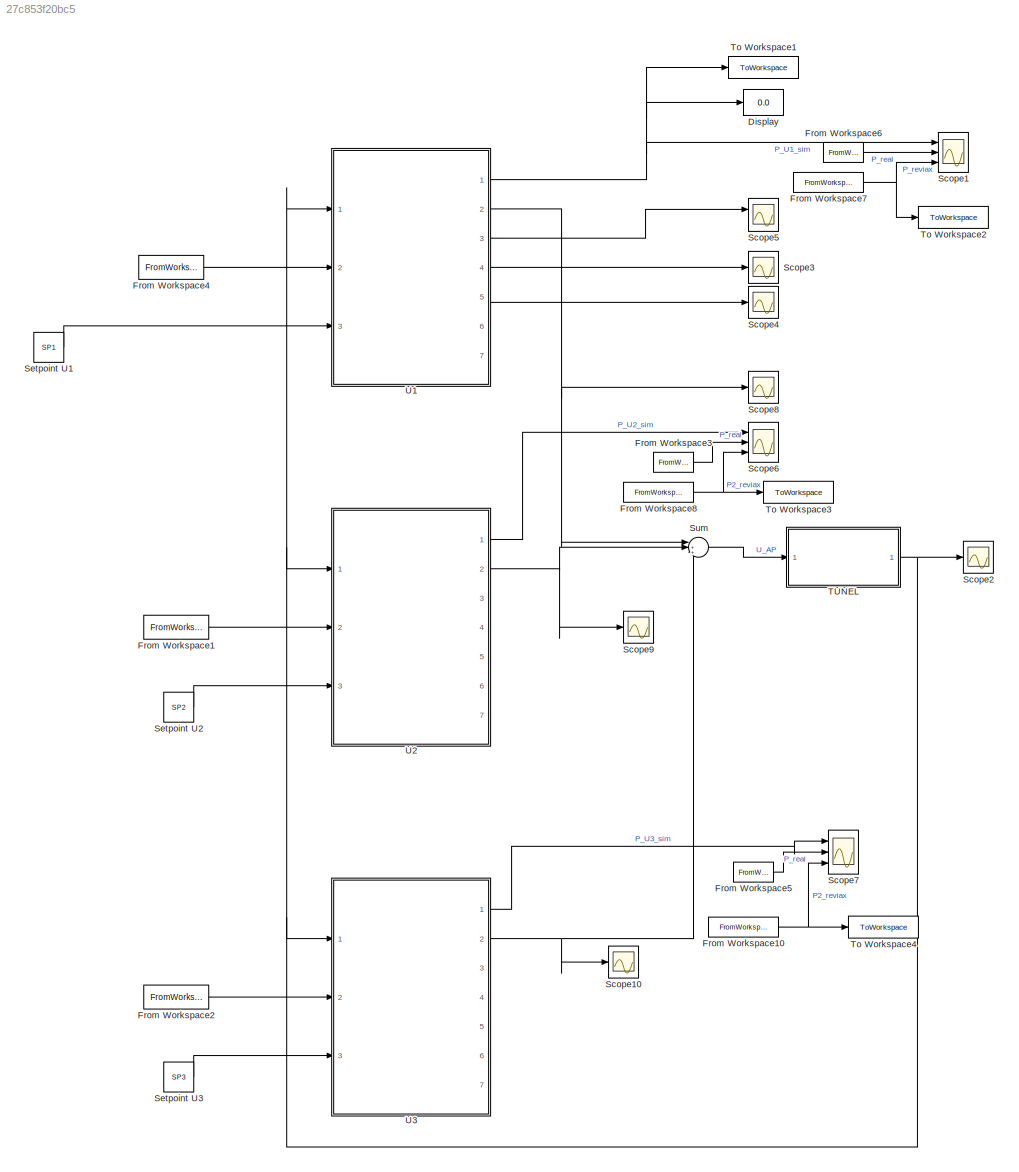
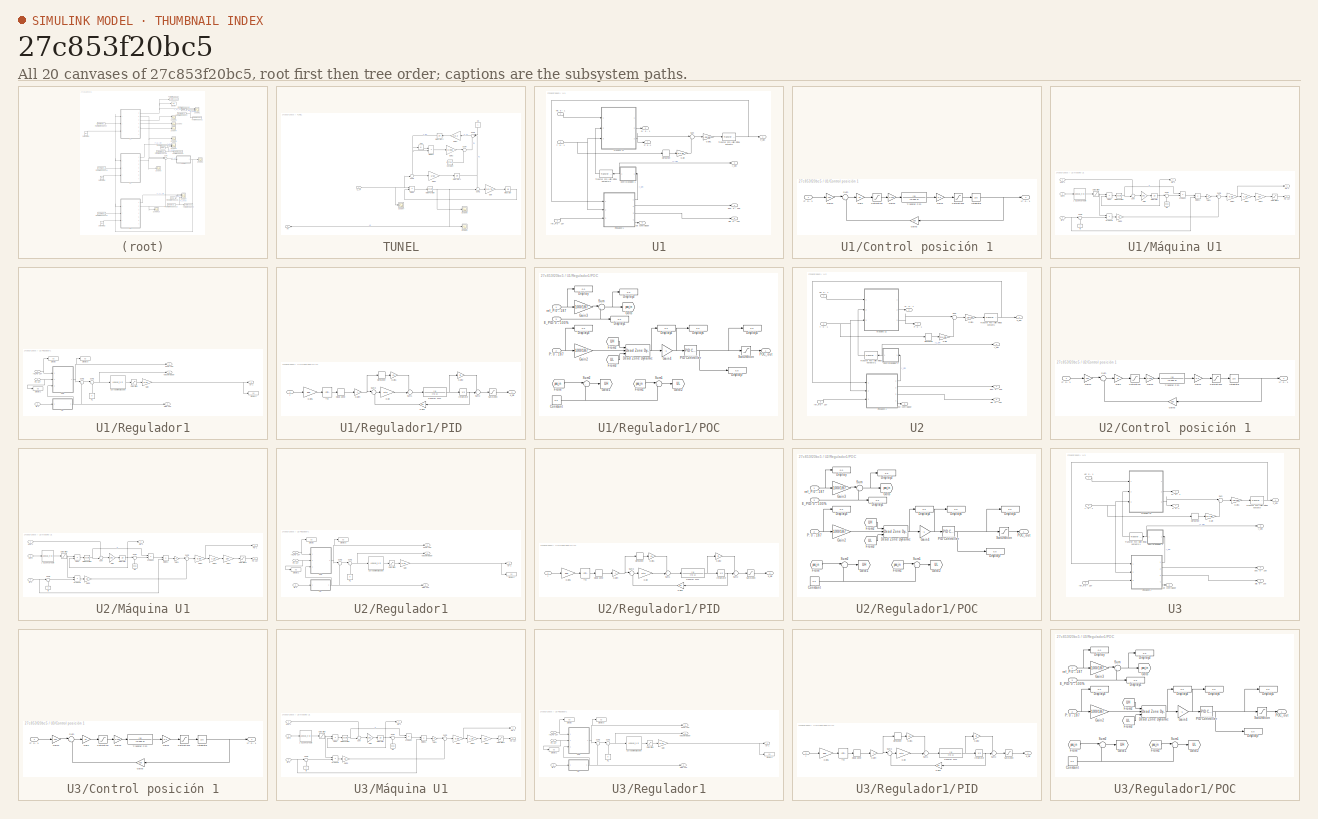
[diagram: thumbnail index - all 20 canvases of the model, root first then tree order]
MODEL slx_27c853f20bc5
KIND model
CONFIG AbsTol = auto
CONFIG EnableMultiTasking = off
CONFIG FixedStep = auto
CONFIG MaxStep = auto
CONFIG MinStep = auto
CONFIG RelTol = 1e-9
CONFIG SampleTimeConstraint = Unconstrained
CONFIG Solver = VariableStepAuto
CONFIG SolverName = VariableStepAuto
CONFIG StartTime = 0.0
CONFIG StopTime = 300
BLOCK [Display] Display
  Decimation = 1
  Ports = [1]
BLOCK [FromWorkspace] From Workspace1
  VariableName = [t f2]
BLOCK [FromWorkspace] From Workspace10
  VariableName = [DS_t, DS_P3]
BLOCK [FromWorkspace] From Workspace2
  VariableName = [t f3]
BLOCK [FromWorkspace] From Workspace3
  VariableName = [t P2]
BLOCK [FromWorkspace] From Workspace4
  VariableName = [t f1]
BLOCK [FromWorkspace] From Workspace5
  VariableName = [t P3]
BLOCK [FromWorkspace] From Workspace6
  VariableName = [t P1]
BLOCK [FromWorkspace] From Workspace7
  VariableName = [DS_t, DS_P1]
BLOCK [FromWorkspace] From Workspace8
  VariableName = [DS_t, DS_P2]
BLOCK [Scope] Scope1
  Floating = off
  NumInputPorts = 3
  Ports = [3]
  ScopeSpecificationString = Simulink.scopes.TimeScopeBlockCfg('CurrentConfiguration', extmgr.ConfigurationSet(extmgr.Configuration('Core','General UI',true,'FigureColor',[1 1 1]),extmgr.Configuration('Core','Source UI',true),extmgr.Configuration('Sources','WiredSimulink',true,'DataLoggingVariableName','ScopeData1'),extmgr.Configuration('Visuals','Time Domain',true,'SerializedDisplays',{struct('MinYLimReal','177.17887','MaxYL...<+1877ch>
BLOCK [Scope] Scope10
  Floating = off
  NumInputPorts = 1
  Ports = [1]
  ScopeSpecificationString = Simulink.scopes.TimeScopeBlockCfg('CurrentConfiguration', extmgr.ConfigurationSet(extmgr.Configuration('Core','General UI',true),extmgr.Configuration('Core','Source UI',true),extmgr.Configuration('Sources','WiredSimulink',true,'DataLoggingVariableName','ScopeData9'),extmgr.Configuration('Visuals','Time Domain',true,'SerializedDisplays',{struct('MinYLimReal','0.37497','MaxYLimReal','1.05072','YLabe...<+1459ch>
BLOCK [Scope] Scope2
  Floating = off
  NumInputPorts = 1
  Ports = [1]
  ScopeSpecificationString = Simulink.scopes.TimeScopeBlockCfg('CurrentConfiguration', extmgr.ConfigurationSet(extmgr.Configuration('Core','General UI',true),extmgr.Configuration('Core','Source UI',true),extmgr.Configuration('Sources','WiredSimulink',true,'DataLoggingVariableName','ScopeData1'),extmgr.Configuration('Visuals','Time Domain',true,'SerializedDisplays',{struct('MinYLimReal','0.99395','MaxYLimReal','1.00375','YLabe...<+1460ch>
BLOCK [Scope] Scope3
  Floating = off
  NumInputPorts = 1
  Ports = [1]
  ScopeSpecificationString = Simulink.scopes.TimeScopeBlockCfg('CurrentConfiguration', extmgr.ConfigurationSet(extmgr.Configuration('Core','General UI',true),extmgr.Configuration('Core','Source UI',true),extmgr.Configuration('Sources','WiredSimulink',true,'DataLoggingVariableName','ScopeData2'),extmgr.Configuration('Visuals','Time Domain',true,'SerializedDisplays',{struct('MinYLimReal','94.09796','MaxYLimReal','94.84471','YLa...<+1467ch>
BLOCK [Scope] Scope4
  Floating = off
  NumInputPorts = 1
  Ports = [1]
  ScopeSpecificationString = Simulink.scopes.TimeScopeBlockCfg('CurrentConfiguration', extmgr.ConfigurationSet(extmgr.Configuration('Core','General UI',true),extmgr.Configuration('Core','Source UI',true),extmgr.Configuration('Sources','WiredSimulink',true,'DataLoggingVariableName','ScopeData3'),extmgr.Configuration('Visuals','Time Domain',true,'SerializedDisplays',{struct('MinYLimReal','-1.10088','MaxYLimReal','1.43637','YLab...<+1434ch>
BLOCK [Scope] Scope5
  Floating = off
  NumInputPorts = 2
  Ports = [2]
  ScopeSpecificationString = Simulink.scopes.TimeScopeBlockCfg('CurrentConfiguration', extmgr.ConfigurationSet(extmgr.Configuration('Core','General UI',true),extmgr.Configuration('Core','Source UI',true),extmgr.Configuration('Sources','WiredSimulink',true,'DataLoggingVariableName','ScopeData4'),extmgr.Configuration('Visuals','Time Domain',true,'SerializedDisplays',{struct('MinYLimReal','0.81725','MaxYLimReal','0.85475','YLabe...<+1449ch>
BLOCK [Scope] Scope6
  Floating = off
  NumInputPorts = 3
  Ports = [3]
  ScopeSpecificationString = Simulink.scopes.TimeScopeBlockCfg('CurrentConfiguration', extmgr.ConfigurationSet(extmgr.Configuration('Core','General UI',true,'FigureColor',[1 1 1]),extmgr.Configuration('Core','Source UI',true),extmgr.Configuration('Sources','WiredSimulink',true,'DataLoggingVariableName','ScopeData1'),extmgr.Configuration('Visuals','Time Domain',true,'SerializedDisplays',{struct('MinYLimReal','176.87368','MaxYL...<+1749ch>
BLOCK [Scope] Scope7
  Floating = off
  NumInputPorts = 3
  Ports = [3]
  ScopeSpecificationString = Simulink.scopes.TimeScopeBlockCfg('CurrentConfiguration', extmgr.ConfigurationSet(extmgr.Configuration('Core','General UI',true,'FigureColor',[1 1 1]),extmgr.Configuration('Core','Source UI',true),extmgr.Configuration('Sources','WiredSimulink',true,'DataLoggingVariableName','ScopeData2'),extmgr.Configuration('Visuals','Time Domain',true,'SerializedDisplays',{struct('MinYLimReal','176.1626','MaxYLi...<+1745ch>
BLOCK [Scope] Scope8
  Floating = off
  NumInputPorts = 1
  Ports = [1]
  ScopeSpecificationString = Simulink.scopes.TimeScopeBlockCfg('CurrentConfiguration', extmgr.ConfigurationSet(extmgr.Configuration('Core','General UI',true),extmgr.Configuration('Core','Source UI',true),extmgr.Configuration('Sources','WiredSimulink',true,'DataLoggingVariableName','ScopeData7'),extmgr.Configuration('Visuals','Time Domain',true,'SerializedDisplays',{struct('MinYLimReal','0.09964','MaxYLimReal','1.07688','YLabe...<+1459ch>
BLOCK [Scope] Scope9
  Floating = off
  NumInputPorts = 1
  Ports = [1]
  ScopeSpecificationString = Simulink.scopes.TimeScopeBlockCfg('CurrentConfiguration', extmgr.ConfigurationSet(extmgr.Configuration('Core','General UI',true),extmgr.Configuration('Core','Source UI',true),extmgr.Configuration('Sources','WiredSimulink',true,'DataLoggingVariableName','ScopeData8'),extmgr.Configuration('Visuals','Time Domain',true,'SerializedDisplays',{struct('MinYLimReal','0.09964','MaxYLimReal','1.07688','YLabe...<+1459ch>
BLOCK [Constant] Setpoint U1
  Value = SP1
BLOCK [Constant] Setpoint U2
  Value = SP2
BLOCK [Constant] Setpoint U3
  Value = SP3
BLOCK [Sum] Sum
  Inputs = |+++
  Ports = [3, 1]
BLOCK [SubSystem] TUNEL
  Ports = [1, 1]
  RequestExecContextInheritance = off
BLOCK [Abs] TUNEL/Abs
  SaturateOnIntegerOverflow = off
BLOCK [Constant] TUNEL/Constant
  Value = (qt_i)^2*0.008
BLOCK [Product] TUNEL/Divide
  Inputs = /*
  Ports = [2, 1]
BLOCK [Product] TUNEL/Divide1
  Inputs = **
  Ports = [2, 1]
BLOCK [Gain] TUNEL/Gain
  Gain = 1/0.70
BLOCK [Gain] TUNEL/Gain1
  Gain = 1/50
BLOCK [Gain] TUNEL/Gain2
  Gain = 0.008
BLOCK [Gain] TUNEL/Gain3
  Gain = 1/0.2
  NameLocation = top
BLOCK [Outport] TUNEL/Hn
BLOCK [Constant] TUNEL/Ho
  NameLocation = left
BLOCK [Integrator] TUNEL/Integrator
  InitialCondition = qt_i
  Ports = [1, 1]
BLOCK [Integrator] TUNEL/Integrator1
  InitialCondition = 1
  Ports = [1, 1]
BLOCK [Integrator] TUNEL/Integrator2
  InitialCondition = qt_i
  NameLocation = top
  Ports = [1, 1]
BLOCK [Math] TUNEL/Math Function
  Operator = square
  Ports = [1, 1]
BLOCK [Scope] TUNEL/Scope2
  Floating = off
  NumInputPorts = 1
  Ports = [1]
  ScopeSpecificationString = Simulink.scopes.TimeScopeBlockCfg('CurrentConfiguration', extmgr.ConfigurationSet(extmgr.Configuration('Core','General UI',true),extmgr.Configuration('Core','Source UI',true),extmgr.Configuration('Sources','WiredSimulink',true),extmgr.Configuration('Visuals','Time Domain',true,'SerializedDisplays',{struct('MinYLimReal','-415265002001530061720023369296904192.00000','MaxYLimReal','461876022467198030...<+1698ch>
BLOCK [Scope] TUNEL/Scope6
  Floating = off
  NumInputPorts = 1
  Ports = [1]
  ScopeSpecificationString = Simulink.scopes.TimeScopeBlockCfg('CurrentConfiguration', extmgr.ConfigurationSet(extmgr.Configuration('Core','General UI',true),extmgr.Configuration('Core','Source UI',true),extmgr.Configuration('Sources','WiredSimulink',true,'DataLoggingVariableName','ScopeData5'),extmgr.Configuration('Visuals','Time Domain',true,'SerializedDisplays',{struct('MinYLimReal','0.96718','MaxYLimReal','1.15467','YLabe...<+1457ch>
BLOCK [Scope] TUNEL/Scope7
  Floating = off
  NumInputPorts = 1
  Ports = [1]
  ScopeSpecificationString = Simulink.scopes.TimeScopeBlockCfg('CurrentConfiguration', extmgr.ConfigurationSet(extmgr.Configuration('Core','General UI',true),extmgr.Configuration('Core','Source UI',true),extmgr.Configuration('Sources','WiredSimulink',true,'DataLoggingVariableName','ScopeData6'),extmgr.Configuration('Visuals','Time Domain',true,'SerializedDisplays',{struct('MinYLimReal','2.71955','MaxYLimReal','3.08526','YLabe...<+1459ch>
BLOCK [Sum] TUNEL/Sum1
  Inputs = +-|
  Ports = [2, 1]
BLOCK [Sum] TUNEL/Sum2
  Inputs = +-|
  Ports = [2, 1]
BLOCK [Sum] TUNEL/Sum3
  Inputs = |+--
  NameLocation = top
  Ports = [3, 1]
BLOCK [Sum] TUNEL/Sum4
  Inputs = |+-
  Ports = [2, 1]
BLOCK [Inport] TUNEL/U_AP
BLOCK [ToWorkspace] To Workspace1
  FixptAsFi = on
  MaxDataPoints = inf
  Ports = [1]
  SampleTime = 1
  SaveFormat = Timeseries
  VariableName = P1_sim
BLOCK [ToWorkspace] To Workspace2
  FixptAsFi = on
  MaxDataPoints = inf
  Ports = [1]
  SampleTime = 1
  SaveFormat = Timeseries
  VariableName = P1_reivax
BLOCK [ToWorkspace] To Workspace3
  FixptAsFi = on
  MaxDataPoints = inf
  Ports = [1]
  SampleTime = 1
  SaveFormat = Timeseries
  VariableName = P2_reivax
BLOCK [ToWorkspace] To Workspace4
  FixptAsFi = on
  MaxDataPoints = inf
  Ports = [1]
  SampleTime = 1
  SaveFormat = Timeseries
  VariableName = P3_reivax
BLOCK [SubSystem] U1
  Ports = [3, 7]
  RequestExecContextInheritance = off
BLOCK [SubSystem] U1/Control posición 1
  NameLocation = top
  Ports = [1, 1]
  RequestExecContextInheritance = off
BLOCK [Gain] U1/Control posición 1/Gain
  Gain = 15
BLOCK [Gain] U1/Control posición 1/Gain1
  Gain = 0.3
BLOCK [Gain] U1/Control posición 1/Gain2
  Gain = 1/100
BLOCK [Gain] U1/Control posición 1/Gain3
  Gain = 100
  NameLocation = top
BLOCK [Gain] U1/Control posición 1/Gain4
  Gain = 100
BLOCK [Integrator] U1/Control posición 1/Integrator
  InitialCondition = y_i_u1
  LimitOutput = on
  LowerSaturationLimit = -1
  Ports = [1, 1]
  UpperSaturationLimit = 1
BLOCK [Saturate] U1/Control posición 1/Saturation
  LowerLimit = -100
  UpperLimit = 100
BLOCK [Saturate] U1/Control posición 1/Saturation1
  LowerLimit = -0.1
  UpperLimit = 0.1
BLOCK [Sum] U1/Control posición 1/Sum
  Inputs = |+-
  Ports = [2, 1]
BLOCK [TransferFcn] U1/Control posición 1/Transfer Fcn
  Denominator = [0.020 1]
BLOCK [Inport] U1/Control posición 1/yf: 0 - 1
BLOCK [Outport] U1/Control posición 1/yr: 0 - 1
BLOCK [Derivative] U1/Derivative
BLOCK [Gain] U1/Gain
  Gain = 2*4.35
BLOCK [Gain] U1/Gain1
  Gain = 1.26*187
BLOCK [Inport] U1/Hn: 0 - 1
BLOCK [SubSystem] U1/Máquina U1
  Ports = [3, 3]
  RequestExecContextInheritance = off
BLOCK [Lookup_n-D] U1/Máquina U1/1-D Lookup Table
  BreakpointsForDimension1 = [0,0.072,0.336,0.35,0.4,0.45,0.5,0.55,0.6,0.65,0.7,0.75,0.8,0.85,0.9,0.95,1]
  InternalRulePriority = Speed
  NumberOfTableDimensions = 1
  Ports = [1, 1]
  RndMeth = Simplest
  Table = [0,0.086,0.387,0.4035,0.4592,0.5194,0.5826,0.6475,0.7127,0.777,0.8389,0.8971,0.9502,0.9969,1.0358,1.0656,1.0849]
BLOCK [Product] U1/Máquina U1/Divide
  Inputs = /*
  Ports = [2, 1]
BLOCK [Product] U1/Máquina U1/Divide1
  Inputs = */
  Ports = [2, 1]
BLOCK [Gain] U1/Máquina U1/Gain
  Gain = 1/0.3
BLOCK [Gain] U1/Máquina U1/Gain1
BLOCK [Gain] U1/Máquina U1/Gain2
  Gain = 1.26
BLOCK [Gain] U1/Máquina U1/Gain3
  Gain = 0.85
BLOCK [Gain] U1/Máquina U1/Gain4
  Gain = 187
BLOCK [Gain] U1/Máquina U1/Gain5
  Gain = 0.2
BLOCK [Inport] U1/Máquina U1/Hn: 0 - 1
BLOCK [Integrator] U1/Máquina U1/Integrator
  InitialCondition = q_i_u1
  Ports = [1, 1]
BLOCK [Math] U1/Máquina U1/Math Function
  Operator = square
  Ports = [1, 1]
BLOCK [Outport] U1/Máquina U1/P: 0 - 1
  Port = 3
BLOCK [Outport] U1/Máquina U1/P: 0 - 187
BLOCK [Product] U1/Máquina U1/Product
  Ports = [2, 1]
BLOCK [Product] U1/Máquina U1/Product1
  Ports = [2, 1]
BLOCK [Outport] U1/Máquina U1/Q: 0 - 1
  Port = 2
BLOCK [Constant] U1/Máquina U1/Qo
  Value = 0.086
BLOCK [Saturate] U1/Máquina U1/Saturation
  LowerLimit = 0.0001
  UpperLimit = 1.1
BLOCK [Saturate] U1/Máquina U1/Saturation1
  LowerLimit = 0
  UpperLimit = 200
BLOCK [Sum] U1/Máquina U1/Sum
  Inputs = +-|
  Ports = [2, 1]
BLOCK [Sum] U1/Máquina U1/Sum1
  Inputs = |+-
  Ports = [2, 1]
BLOCK [Sum] U1/Máquina U1/Sum2
  Inputs = |+-
  Ports = [2, 1]
BLOCK [Sum] U1/Máquina U1/Sum3
  Inputs = |+-
  Ports = [2, 1]
BLOCK [Inport] U1/Máquina U1/f: 0 -1
  Port = 3
BLOCK [Constant] U1/Máquina U1/fo
BLOCK [Inport] U1/Máquina U1/y: 0 - 1
  Port = 2
BLOCK [Outport] U1/P: 0 -1
  Port = 7
BLOCK [Outport] U1/P_sim
BLOCK [Outport] U1/Q: 0 - 1
  Port = 2
BLOCK [SubSystem] U1/Regulador1
  Ports = [3, 4]
  RequestExecContextInheritance = off
BLOCK [Lookup_n-D] U1/Regulador1/Curva de linealización
  BreakpointsForDimension1 = [-1,0,8,8.001,18,38,48,58,68,78,88,98,107,151]
  InternalRulePriority = Speed
  NumberOfTableDimensions = 1
  Ports = [1, 1]
  RndMeth = Simplest
  Table = [-1,0,8,8.001,17.4,33.1,40,46.3,51.8,59.0,67,78,89,115]
BLOCK [Display] U1/Regulador1/Display
  Decimation = 1
  Ports = [1]
BLOCK [Display] U1/Regulador1/Display1
  Decimation = 1
  Ports = [1]
BLOCK [Display] U1/Regulador1/Display2
  Decimation = 1
  Ports = [1]
BLOCK [Display] U1/Regulador1/Display3
  Decimation = 1
  Ports = [1]
BLOCK [Gain] U1/Regulador1/Gain
  Gain = 0.01
BLOCK [Constant] U1/Regulador1/NL
  NameLocation = right
  Value = 8
BLOCK [Inport] U1/Regulador1/P: 0 - 187
BLOCK [SubSystem] U1/Regulador1/PID
  Ports = [1, 1]
  RequestExecContextInheritance = off
BLOCK [DeadZone] U1/Regulador1/PID/Dead Zone
  LowerValue = 100-0.01
  UpperValue = 100+0.01
BLOCK [Derivative] U1/Regulador1/PID/Derivative
BLOCK [Gain] U1/Regulador1/PID/Gain
  Gain = 1/tx
BLOCK [Gain] U1/Regulador1/PID/Gain1
  Gain = kp
BLOCK [Gain] U1/Regulador1/PID/Gain2
  Gain = td
BLOCK [Gain] U1/Regulador1/PID/Gain3
  Gain = bp
  NameLocation = top
BLOCK [Gain] U1/Regulador1/PID/Gain4
  Gain = -1
BLOCK [Gain] U1/Regulador1/PID/Gain5
  Gain = 100
BLOCK [InitialCondition] U1/Regulador1/PID/IC1
  Value = 100
BLOCK [Integrator] U1/Regulador1/PID/Integrator
  Ports = [1, 1]
BLOCK [Saturate] U1/Regulador1/PID/Saturation
  LowerLimit = -2.5
  UpperLimit = 2.5
BLOCK [Sum] U1/Regulador1/PID/Sum1
  Inputs = ++|
  Ports = [2, 1]
BLOCK [Sum] U1/Regulador1/PID/Sum2
  Inputs = ++|
  Ports = [2, 1]
BLOCK [Sum] U1/Regulador1/PID/Sum3
  Inputs = |+-
  Ports = [2, 1]
BLOCK [TransferFcn] U1/Regulador1/PID/Transfer Fcn1
  Denominator = [t3 1]
BLOCK [Outport] U1/Regulador1/PID/e_pid
BLOCK [Inport] U1/Regulador1/PID/f
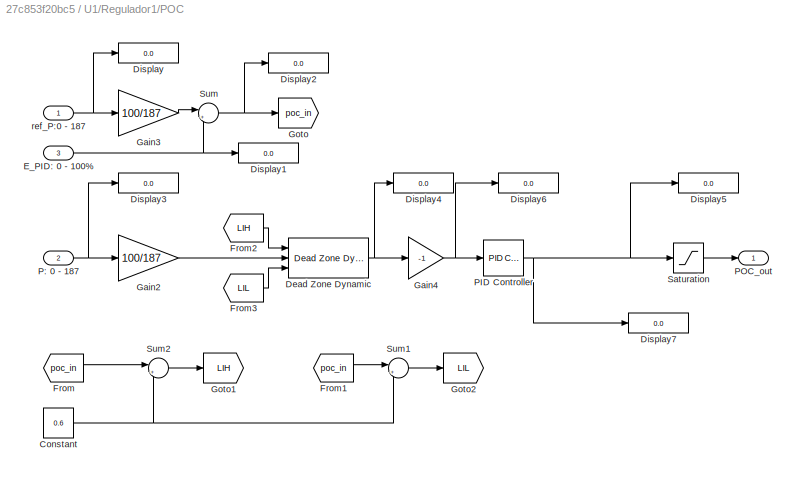
BLOCK [SubSystem] U1/Regulador1/POC
  Ports = [3, 1]
  RequestExecContextInheritance = off
BLOCK [Constant] U1/Regulador1/POC/Constant
  Value = 0.6
BLOCK [Reference] U1/Regulador1/POC/Dead Zone Dynamic  REF=simulink/Discontinuities/Dead Zone
Dynamic
  Ports = [3, 1]
  SourceBlock = simulink/Discontinuities/Dead Zone\nDynamic
  SourceProductBaseCode = SL
  SourceType = Dead Zone Dynamic
BLOCK [Display] U1/Regulador1/POC/Display
  Decimation = 1
  Ports = [1]
BLOCK [Display] U1/Regulador1/POC/Display1
  Decimation = 1
  Ports = [1]
BLOCK [Display] U1/Regulador1/POC/Display2
  Decimation = 1
  Ports = [1]
BLOCK [Display] U1/Regulador1/POC/Display3
  Decimation = 1
  Ports = [1]
BLOCK [Display] U1/Regulador1/POC/Display4
  Decimation = 1
  Ports = [1]
BLOCK [Display] U1/Regulador1/POC/Display5
  Decimation = 1
  Ports = [1]
BLOCK [Display] U1/Regulador1/POC/Display6
  Decimation = 1
  Ports = [1]
BLOCK [Display] U1/Regulador1/POC/Display7
  Decimation = 1
  Ports = [1]
BLOCK [Inport] U1/Regulador1/POC/E_PID: 0 - 100%
  Port = 3
BLOCK [From] U1/Regulador1/POC/From
  GotoTag = poc_in
BLOCK [From] U1/Regulador1/POC/From1
  GotoTag = poc_in
BLOCK [From] U1/Regulador1/POC/From2
  GotoTag = LIH
BLOCK [From] U1/Regulador1/POC/From3
  GotoTag = LIL
BLOCK [Gain] U1/Regulador1/POC/Gain2
  Gain = 100/187
BLOCK [Gain] U1/Regulador1/POC/Gain3
  Gain = 100/187
BLOCK [Gain] U1/Regulador1/POC/Gain4
  Gain = -1
BLOCK [Goto] U1/Regulador1/POC/Goto
  GotoTag = poc_in
BLOCK [Goto] U1/Regulador1/POC/Goto1
  GotoTag = LIH
BLOCK [Goto] U1/Regulador1/POC/Goto2
  GotoTag = LIL
BLOCK [Inport] U1/Regulador1/POC/P: 0 - 187
  Port = 2
BLOCK [Reference] U1/Regulador1/POC/PID Controller  REF=simulink/Continuous/PID Controller
  Ports = [1, 1]
  SourceBlock = simulink/Continuous/PID Controller
  SourceProductBaseCode = SL
  SourceType = PID 1dof
BLOCK [Outport] U1/Regulador1/POC/POC_out
BLOCK [Saturate] U1/Regulador1/POC/Saturation
  LowerLimit = -120
  UpperLimit = 120
  ZeroCross = off
BLOCK [Sum] U1/Regulador1/POC/Sum
  Inputs = |++
  Ports = [2, 1]
BLOCK [Sum] U1/Regulador1/POC/Sum1
  Inputs = |+-
  Ports = [2, 1]
BLOCK [Sum] U1/Regulador1/POC/Sum2
  Inputs = |++
  Ports = [2, 1]
BLOCK [Inport] U1/Regulador1/POC/ref_P:0 - 187
BLOCK [Saturate] U1/Regulador1/Saturation
  LowerLimit = 7.9
  UpperLimit = 115
  ZeroCross = off
BLOCK [Sum] U1/Regulador1/Sum1
  Inputs = |++
  Ports = [2, 1]
BLOCK [Sum] U1/Regulador1/Sum2
  Inputs = |++
  Ports = [2, 1]
BLOCK [Inport] U1/Regulador1/f: 0 - 1
  Port = 2
BLOCK [Outport] U1/Regulador1/out controlador
  Port = 4
BLOCK [Outport] U1/Regulador1/pid: 0 - 100
  Port = 3
BLOCK [Outport] U1/Regulador1/poc: 0 - 100
  Port = 2
BLOCK [Inport] U1/Regulador1/ref_P:0 - 187
  Port = 3
BLOCK [Outport] U1/Regulador1/y: 0 - 1
BLOCK [Sum] U1/Sum
  Inputs = |+-
  Ports = [2, 1]
BLOCK [Reference] U1/Transfer Fcn (with initial outputs)  REF=simulink_extras/Additional
Linear/Transfer Fcn
(with initial outputs)
  Ports = [1, 1]
  SourceBlock = simulink_extras/Additional\nLinear/Transfer Fcn\n(with initial outputs)
  SourceProductBaseCode = SL
  SourceType = Transfer Function with Initial Outputs
BLOCK [Reference] U1/Transfer Fcn (with initial outputs)1  REF=simulink_extras/Additional
Linear/Transfer Fcn
(with initial outputs)
  NameLocation = top
  Ports = [1, 1]
  SourceBlock = simulink_extras/Additional\nLinear/Transfer Fcn\n(with initial outputs)
  SourceProductBaseCode = SL
  SourceType = Transfer Function with Initial Outputs
BLOCK [Inport] U1/f: 0 - 1
  Port = 2
BLOCK [Outport] U1/out controlador
  Port = 6
BLOCK [Outport] U1/pid: 0 - 100
  Port = 5
BLOCK [Outport] U1/poc: 0 - 100
  Port = 4
BLOCK [Inport] U1/ref_P:0 - 187
  Port = 3
BLOCK [Outport] U1/y_sim
  Port = 3
BLOCK [SubSystem] U2
  Ports = [3, 7]
  RequestExecContextInheritance = off
BLOCK [SubSystem] U2/Control posición 1
  NameLocation = top
  Ports = [1, 1]
  RequestExecContextInheritance = off
BLOCK [Gain] U2/Control posición 1/Gain
  Gain = 15
BLOCK [Gain] U2/Control posición 1/Gain1
  Gain = 0.3
BLOCK [Gain] U2/Control posición 1/Gain2
  Gain = 1/100
BLOCK [Gain] U2/Control posición 1/Gain3
  Gain = 100
  NameLocation = top
BLOCK [Gain] U2/Control posición 1/Gain4
  Gain = 100
BLOCK [Integrator] U2/Control posición 1/Integrator
  InitialCondition = y_i_u2
  LimitOutput = on
  LowerSaturationLimit = -1
  Ports = [1, 1]
  UpperSaturationLimit = 1
BLOCK [Saturate] U2/Control posición 1/Saturation
  LowerLimit = -100
  UpperLimit = 100
BLOCK [Saturate] U2/Control posición 1/Saturation1
  LowerLimit = -0.1
  UpperLimit = 0.1
BLOCK [Sum] U2/Control posición 1/Sum
  Inputs = |+-
  Ports = [2, 1]
BLOCK [TransferFcn] U2/Control posición 1/Transfer Fcn
  Denominator = [0.020 1]
BLOCK [Inport] U2/Control posición 1/yf: 0 - 1
BLOCK [Outport] U2/Control posición 1/yr: 0 - 1
BLOCK [Derivative] U2/Derivative
BLOCK [Gain] U2/Gain
  Gain = 2*4.35
BLOCK [Gain] U2/Gain1
  Gain = 1.26*187
BLOCK [Inport] U2/Hn: 0 - 1
BLOCK [SubSystem] U2/Máquina U1
  Ports = [3, 3]
  RequestExecContextInheritance = off
BLOCK [Lookup_n-D] U2/Máquina U1/1-D Lookup Table
  BreakpointsForDimension1 = [0,0.072,0.336,0.35,0.4,0.45,0.5,0.55,0.6,0.65,0.7,0.75,0.8,0.85,0.9,0.95,1]
  InternalRulePriority = Speed
  NumberOfTableDimensions = 1
  Ports = [1, 1]
  RndMeth = Simplest
  Table = [0,0.086,0.387,0.4035,0.4592,0.5194,0.5826,0.6475,0.7127,0.777,0.8389,0.8971,0.9502,0.9969,1.0358,1.0656,1.0849]
BLOCK [Product] U2/Máquina U1/Divide
  Inputs = /*
  Ports = [2, 1]
BLOCK [Product] U2/Máquina U1/Divide1
  Inputs = */
  Ports = [2, 1]
BLOCK [Gain] U2/Máquina U1/Gain
  Gain = 1/0.3
BLOCK [Gain] U2/Máquina U1/Gain1
BLOCK [Gain] U2/Máquina U1/Gain2
  Gain = 1.26
BLOCK [Gain] U2/Máquina U1/Gain3
  Gain = 0.85
BLOCK [Gain] U2/Máquina U1/Gain4
  Gain = 187
BLOCK [Gain] U2/Máquina U1/Gain5
  Gain = 0.2
BLOCK [Inport] U2/Máquina U1/Hn: 0 - 1
BLOCK [Integrator] U2/Máquina U1/Integrator
  InitialCondition = q_i_u2
  Ports = [1, 1]
BLOCK [Math] U2/Máquina U1/Math Function
  Operator = square
  Ports = [1, 1]
BLOCK [Outport] U2/Máquina U1/P: 0 - 1
  Port = 3
BLOCK [Outport] U2/Máquina U1/P: 0 - 187
BLOCK [Product] U2/Máquina U1/Product
  Ports = [2, 1]
BLOCK [Product] U2/Máquina U1/Product1
  Ports = [2, 1]
BLOCK [Outport] U2/Máquina U1/Q: 0 - 1
  Port = 2
BLOCK [Constant] U2/Máquina U1/Qo
  Value = 0.086
BLOCK [Saturate] U2/Máquina U1/Saturation
  LowerLimit = 0.0001
  UpperLimit = 1.1
BLOCK [Saturate] U2/Máquina U1/Saturation1
  LowerLimit = 0
  UpperLimit = 200
BLOCK [Sum] U2/Máquina U1/Sum
  Inputs = +-|
  Ports = [2, 1]
BLOCK [Sum] U2/Máquina U1/Sum1
  Inputs = |+-
  Ports = [2, 1]
BLOCK [Sum] U2/Máquina U1/Sum2
  Inputs = |+-
  Ports = [2, 1]
BLOCK [Sum] U2/Máquina U1/Sum3
  Inputs = |+-
  Ports = [2, 1]
BLOCK [Inport] U2/Máquina U1/f: 0 -1
  Port = 3
BLOCK [Constant] U2/Máquina U1/fo
BLOCK [Inport] U2/Máquina U1/y: 0 - 1
  Port = 2
BLOCK [Outport] U2/P: 0 - 1
  Port = 7
BLOCK [Outport] U2/P_sim
BLOCK [Outport] U2/Q: 0 - 1
  Port = 2
BLOCK [SubSystem] U2/Regulador1
  Ports = [3, 4]
  RequestExecContextInheritance = off
BLOCK [Lookup_n-D] U2/Regulador1/Curva de linealización
  BreakpointsForDimension1 = [-1,0,8,8.001,18,38,48,58,68,78,88,98,107,151]
  InternalRulePriority = Speed
  NumberOfTableDimensions = 1
  Ports = [1, 1]
  RndMeth = Simplest
  Table = [-1,0,8,8.001,17.4,33.1,40,46.3,51.8,59.0,67,78,89,115]
BLOCK [Display] U2/Regulador1/Display
  Decimation = 1
  Ports = [1]
BLOCK [Display] U2/Regulador1/Display1
  Decimation = 1
  Ports = [1]
BLOCK [Display] U2/Regulador1/Display2
  Decimation = 1
  Ports = [1]
BLOCK [Display] U2/Regulador1/Display3
  Decimation = 1
  Ports = [1]
BLOCK [Gain] U2/Regulador1/Gain
  Gain = 0.01
BLOCK [Constant] U2/Regulador1/NL
  NameLocation = right
  Value = 8
BLOCK [Inport] U2/Regulador1/P: 0 - 187
BLOCK [SubSystem] U2/Regulador1/PID
  Ports = [1, 1]
  RequestExecContextInheritance = off
BLOCK [DeadZone] U2/Regulador1/PID/Dead Zone
  LowerValue = 100-0.01
  UpperValue = 100+0.01
BLOCK [Derivative] U2/Regulador1/PID/Derivative
BLOCK [Gain] U2/Regulador1/PID/Gain
  Gain = 1/tx
BLOCK [Gain] U2/Regulador1/PID/Gain1
  Gain = kp
BLOCK [Gain] U2/Regulador1/PID/Gain2
  Gain = td
BLOCK [Gain] U2/Regulador1/PID/Gain3
  Gain = bp
  NameLocation = top
BLOCK [Gain] U2/Regulador1/PID/Gain4
  Gain = -1
BLOCK [Gain] U2/Regulador1/PID/Gain5
  Gain = 100
BLOCK [InitialCondition] U2/Regulador1/PID/IC1
  Value = 100
BLOCK [Integrator] U2/Regulador1/PID/Integrator
  Ports = [1, 1]
BLOCK [Saturate] U2/Regulador1/PID/Saturation
  LowerLimit = -2.5
  UpperLimit = 2.5
BLOCK [Sum] U2/Regulador1/PID/Sum1
  Inputs = ++|
  Ports = [2, 1]
BLOCK [Sum] U2/Regulador1/PID/Sum2
  Inputs = ++|
  Ports = [2, 1]
BLOCK [Sum] U2/Regulador1/PID/Sum3
  Inputs = |+-
  Ports = [2, 1]
BLOCK [TransferFcn] U2/Regulador1/PID/Transfer Fcn1
  Denominator = [t3 1]
BLOCK [Outport] U2/Regulador1/PID/e_pid
BLOCK [Inport] U2/Regulador1/PID/f
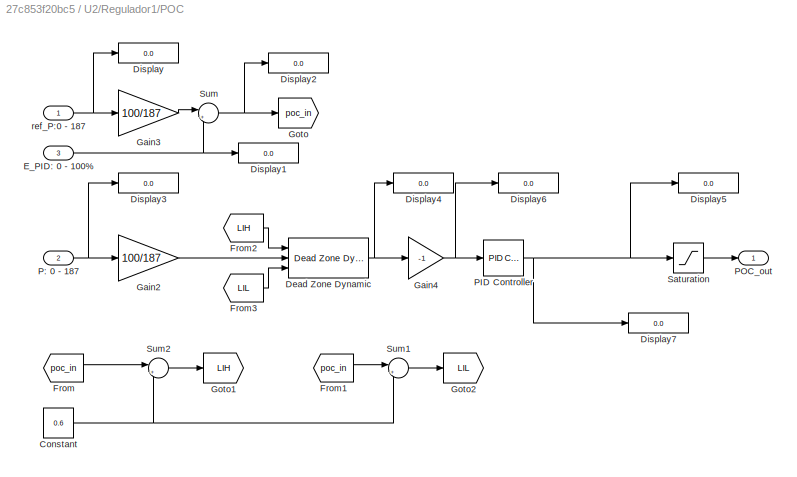
BLOCK [SubSystem] U2/Regulador1/POC
  Ports = [3, 1]
  RequestExecContextInheritance = off
BLOCK [Constant] U2/Regulador1/POC/Constant
  Value = 0.6
BLOCK [Reference] U2/Regulador1/POC/Dead Zone Dynamic  REF=simulink/Discontinuities/Dead Zone
Dynamic
  Ports = [3, 1]
  SourceBlock = simulink/Discontinuities/Dead Zone\nDynamic
  SourceProductBaseCode = SL
  SourceType = Dead Zone Dynamic
BLOCK [Display] U2/Regulador1/POC/Display
  Decimation = 1
  Ports = [1]
BLOCK [Display] U2/Regulador1/POC/Display1
  Decimation = 1
  Ports = [1]
BLOCK [Display] U2/Regulador1/POC/Display2
  Decimation = 1
  Ports = [1]
BLOCK [Display] U2/Regulador1/POC/Display3
  Decimation = 1
  Ports = [1]
BLOCK [Display] U2/Regulador1/POC/Display4
  Decimation = 1
  Ports = [1]
BLOCK [Display] U2/Regulador1/POC/Display5
  Decimation = 1
  Ports = [1]
BLOCK [Display] U2/Regulador1/POC/Display6
  Decimation = 1
  Ports = [1]
BLOCK [Display] U2/Regulador1/POC/Display7
  Decimation = 1
  Ports = [1]
BLOCK [Inport] U2/Regulador1/POC/E_PID: 0 - 100%
  Port = 3
BLOCK [From] U2/Regulador1/POC/From
  GotoTag = poc_in
BLOCK [From] U2/Regulador1/POC/From1
  GotoTag = poc_in
BLOCK [From] U2/Regulador1/POC/From2
  GotoTag = LIH
BLOCK [From] U2/Regulador1/POC/From3
  GotoTag = LIL
BLOCK [Gain] U2/Regulador1/POC/Gain2
  Gain = 100/187
BLOCK [Gain] U2/Regulador1/POC/Gain3
  Gain = 100/187
BLOCK [Gain] U2/Regulador1/POC/Gain4
  Gain = -1
BLOCK [Goto] U2/Regulador1/POC/Goto
  GotoTag = poc_in
BLOCK [Goto] U2/Regulador1/POC/Goto1
  GotoTag = LIH
BLOCK [Goto] U2/Regulador1/POC/Goto2
  GotoTag = LIL
BLOCK [Inport] U2/Regulador1/POC/P: 0 - 187
  Port = 2
BLOCK [Reference] U2/Regulador1/POC/PID Controller  REF=simulink/Continuous/PID Controller
  Ports = [1, 1]
  SourceBlock = simulink/Continuous/PID Controller
  SourceProductBaseCode = SL
  SourceType = PID 1dof
BLOCK [Outport] U2/Regulador1/POC/POC_out
BLOCK [Saturate] U2/Regulador1/POC/Saturation
  LowerLimit = -120
  UpperLimit = 120
  ZeroCross = off
BLOCK [Sum] U2/Regulador1/POC/Sum
  Inputs = |++
  Ports = [2, 1]
BLOCK [Sum] U2/Regulador1/POC/Sum1
  Inputs = |+-
  Ports = [2, 1]
BLOCK [Sum] U2/Regulador1/POC/Sum2
  Inputs = |++
  Ports = [2, 1]
BLOCK [Inport] U2/Regulador1/POC/ref_P:0 - 187
BLOCK [Saturate] U2/Regulador1/Saturation
  LowerLimit = 7.9
  UpperLimit = 115
  ZeroCross = off
BLOCK [Sum] U2/Regulador1/Sum1
  Inputs = |++
  Ports = [2, 1]
BLOCK [Sum] U2/Regulador1/Sum2
  Inputs = |++
  Ports = [2, 1]
BLOCK [Inport] U2/Regulador1/f: 0 - 1
  Port = 2
BLOCK [Outport] U2/Regulador1/out controlador
  Port = 4
BLOCK [Outport] U2/Regulador1/pid: 0 - 100
  Port = 3
BLOCK [Outport] U2/Regulador1/poc: 0 - 100
  Port = 2
BLOCK [Inport] U2/Regulador1/ref_P:0 - 187
  Port = 3
BLOCK [Outport] U2/Regulador1/y: 0 - 1
BLOCK [Sum] U2/Sum
  Inputs = |+-
  Ports = [2, 1]
BLOCK [Reference] U2/Transfer Fcn (with initial outputs)  REF=simulink_extras/Additional
Linear/Transfer Fcn
(with initial outputs)
  Ports = [1, 1]
  SourceBlock = simulink_extras/Additional\nLinear/Transfer Fcn\n(with initial outputs)
  SourceProductBaseCode = SL
  SourceType = Transfer Function with Initial Outputs
BLOCK [Reference] U2/Transfer Fcn (with initial outputs)1  REF=simulink_extras/Additional
Linear/Transfer Fcn
(with initial outputs)
  NameLocation = top
  Ports = [1, 1]
  SourceBlock = simulink_extras/Additional\nLinear/Transfer Fcn\n(with initial outputs)
  SourceProductBaseCode = SL
  SourceType = Transfer Function with Initial Outputs
BLOCK [Inport] U2/f: 0 - 1
  Port = 2
BLOCK [Outport] U2/out controlador
  Port = 6
BLOCK [Outport] U2/pid: 0 - 100
  Port = 5
BLOCK [Outport] U2/poc: 0 - 100
  Port = 4
BLOCK [Inport] U2/ref_P:0 - 187
  Port = 3
BLOCK [Outport] U2/y_sim
  Port = 3
BLOCK [SubSystem] U3
  Ports = [3, 7]
  RequestExecContextInheritance = off
BLOCK [SubSystem] U3/Control posición 1
  NameLocation = top
  Ports = [1, 1]
  RequestExecContextInheritance = off
BLOCK [Gain] U3/Control posición 1/Gain
  Gain = 15
BLOCK [Gain] U3/Control posición 1/Gain1
  Gain = 0.3
BLOCK [Gain] U3/Control posición 1/Gain2
  Gain = 1/100
BLOCK [Gain] U3/Control posición 1/Gain3
  Gain = 100
  NameLocation = top
BLOCK [Gain] U3/Control posición 1/Gain4
  Gain = 100
BLOCK [Integrator] U3/Control posición 1/Integrator
  InitialCondition = y_i_u3
  LimitOutput = on
  LowerSaturationLimit = -1
  Ports = [1, 1]
  UpperSaturationLimit = 1
BLOCK [Saturate] U3/Control posición 1/Saturation
  LowerLimit = -100
  UpperLimit = 100
BLOCK [Saturate] U3/Control posición 1/Saturation1
  LowerLimit = -0.1
  UpperLimit = 0.1
BLOCK [Sum] U3/Control posición 1/Sum
  Inputs = |+-
  Ports = [2, 1]
BLOCK [TransferFcn] U3/Control posición 1/Transfer Fcn
  Denominator = [0.020 1]
BLOCK [Inport] U3/Control posición 1/yf: 0 - 1
BLOCK [Outport] U3/Control posición 1/yr: 0 - 1
BLOCK [Derivative] U3/Derivative
BLOCK [Gain] U3/Gain
  Gain = 2*4.35
BLOCK [Gain] U3/Gain1
  Gain = 1.26*187
BLOCK [Inport] U3/Hn: 0 - 1
BLOCK [SubSystem] U3/Máquina U1
  Ports = [3, 3]
  RequestExecContextInheritance = off
BLOCK [Lookup_n-D] U3/Máquina U1/1-D Lookup Table
  BreakpointsForDimension1 = [0,0.072,0.336,0.35,0.4,0.45,0.5,0.55,0.6,0.65,0.7,0.75,0.8,0.85,0.9,0.95,1]
  InternalRulePriority = Speed
  NumberOfTableDimensions = 1
  Ports = [1, 1]
  RndMeth = Simplest
  Table = [0,0.086,0.387,0.4035,0.4592,0.5194,0.5826,0.6475,0.7127,0.777,0.8389,0.8971,0.9502,0.9969,1.0358,1.0656,1.0849]
BLOCK [Product] U3/Máquina U1/Divide
  Inputs = /*
  Ports = [2, 1]
BLOCK [Product] U3/Máquina U1/Divide1
  Inputs = */
  Ports = [2, 1]
BLOCK [Gain] U3/Máquina U1/Gain
  Gain = 1/0.3
BLOCK [Gain] U3/Máquina U1/Gain1
BLOCK [Gain] U3/Máquina U1/Gain2
  Gain = 1.26
BLOCK [Gain] U3/Máquina U1/Gain3
  Gain = 0.85
BLOCK [Gain] U3/Máquina U1/Gain4
  Gain = 187
BLOCK [Gain] U3/Máquina U1/Gain5
  Gain = 0.2
BLOCK [Inport] U3/Máquina U1/Hn: 0 - 1
BLOCK [Integrator] U3/Máquina U1/Integrator
  InitialCondition = q_i_u3
  Ports = [1, 1]
BLOCK [Math] U3/Máquina U1/Math Function
  Operator = square
  Ports = [1, 1]
BLOCK [Outport] U3/Máquina U1/P: 0 - 1
  Port = 3
BLOCK [Outport] U3/Máquina U1/P: 0 - 187
BLOCK [Product] U3/Máquina U1/Product
  Ports = [2, 1]
BLOCK [Product] U3/Máquina U1/Product1
  Ports = [2, 1]
BLOCK [Outport] U3/Máquina U1/Q: 0 - 1
  Port = 2
BLOCK [Constant] U3/Máquina U1/Qo
  Value = 0.086
BLOCK [Saturate] U3/Máquina U1/Saturation
  LowerLimit = 0.0001
  UpperLimit = 1.1
BLOCK [Saturate] U3/Máquina U1/Saturation1
  LowerLimit = 0
  UpperLimit = 200
BLOCK [Sum] U3/Máquina U1/Sum
  Inputs = +-|
  Ports = [2, 1]
BLOCK [Sum] U3/Máquina U1/Sum1
  Inputs = |+-
  Ports = [2, 1]
BLOCK [Sum] U3/Máquina U1/Sum2
  Inputs = |+-
  Ports = [2, 1]
BLOCK [Sum] U3/Máquina U1/Sum3
  Inputs = |+-
  Ports = [2, 1]
BLOCK [Inport] U3/Máquina U1/f: 0 -1
  Port = 3
BLOCK [Constant] U3/Máquina U1/fo
BLOCK [Inport] U3/Máquina U1/y: 0 - 1
  Port = 2
BLOCK [Outport] U3/P: 0 -1
  Port = 7
BLOCK [Outport] U3/P_sim
BLOCK [Outport] U3/Q: 0 - 1
  Port = 2
BLOCK [SubSystem] U3/Regulador1
  Ports = [3, 4]
  RequestExecContextInheritance = off
BLOCK [Lookup_n-D] U3/Regulador1/Curva de linealización
  BreakpointsForDimension1 = [-1,0,8,8.001,18,38,48,58,68,78,88,98,107,151]
  InternalRulePriority = Speed
  NumberOfTableDimensions = 1
  Ports = [1, 1]
  RndMeth = Simplest
  Table = [-1,0,8,8.001,17.4,33.1,40,46.3,51.8,59.0,67,78,89,115]
BLOCK [Display] U3/Regulador1/Display
  Decimation = 1
  Ports = [1]
BLOCK [Display] U3/Regulador1/Display1
  Decimation = 1
  Ports = [1]
BLOCK [Display] U3/Regulador1/Display2
  Decimation = 1
  Ports = [1]
BLOCK [Display] U3/Regulador1/Display3
  Decimation = 1
  Ports = [1]
BLOCK [Gain] U3/Regulador1/Gain
  Gain = 0.01
BLOCK [Constant] U3/Regulador1/NL
  NameLocation = right
  Value = 8
BLOCK [Inport] U3/Regulador1/P: 0 - 187
BLOCK [SubSystem] U3/Regulador1/PID
  Ports = [1, 1]
  RequestExecContextInheritance = off
BLOCK [DeadZone] U3/Regulador1/PID/Dead Zone
  LowerValue = 100-0.01
  UpperValue = 100+0.01
BLOCK [Derivative] U3/Regulador1/PID/Derivative
BLOCK [Gain] U3/Regulador1/PID/Gain
  Gain = 1/tx
BLOCK [Gain] U3/Regulador1/PID/Gain1
  Gain = kp
BLOCK [Gain] U3/Regulador1/PID/Gain2
  Gain = td
BLOCK [Gain] U3/Regulador1/PID/Gain3
  Gain = bp
  NameLocation = top
BLOCK [Gain] U3/Regulador1/PID/Gain4
  Gain = -1
BLOCK [Gain] U3/Regulador1/PID/Gain5
  Gain = 100
BLOCK [InitialCondition] U3/Regulador1/PID/IC1
  Value = 100
BLOCK [Integrator] U3/Regulador1/PID/Integrator
  Ports = [1, 1]
BLOCK [Saturate] U3/Regulador1/PID/Saturation
  LowerLimit = -2.5
  UpperLimit = 2.5
BLOCK [Sum] U3/Regulador1/PID/Sum1
  Inputs = ++|
  Ports = [2, 1]
BLOCK [Sum] U3/Regulador1/PID/Sum2
  Inputs = ++|
  Ports = [2, 1]
BLOCK [Sum] U3/Regulador1/PID/Sum3
  Inputs = |+-
  Ports = [2, 1]
BLOCK [TransferFcn] U3/Regulador1/PID/Transfer Fcn1
  Denominator = [t3 1]
BLOCK [Outport] U3/Regulador1/PID/e_pid
BLOCK [Inport] U3/Regulador1/PID/f
BLOCK [SubSystem] U3/Regulador1/POC
  Ports = [3, 1]
  RequestExecContextInheritance = off
BLOCK [Constant] U3/Regulador1/POC/Constant
  Value = 0.6
BLOCK [Reference] U3/Regulador1/POC/Dead Zone Dynamic  REF=simulink/Discontinuities/Dead Zone
Dynamic
  Ports = [3, 1]
  SourceBlock = simulink/Discontinuities/Dead Zone\nDynamic
  SourceProductBaseCode = SL
  SourceType = Dead Zone Dynamic
BLOCK [Display] U3/Regulador1/POC/Display
  Decimation = 1
  Ports = [1]
BLOCK [Display] U3/Regulador1/POC/Display1
  Decimation = 1
  Ports = [1]
BLOCK [Display] U3/Regulador1/POC/Display2
  Decimation = 1
  Ports = [1]
BLOCK [Display] U3/Regulador1/POC/Display3
  Decimation = 1
  Ports = [1]
BLOCK [Display] U3/Regulador1/POC/Display4
  Decimation = 1
  Ports = [1]
BLOCK [Display] U3/Regulador1/POC/Display5
  Decimation = 1
  Ports = [1]
BLOCK [Display] U3/Regulador1/POC/Display6
  Decimation = 1
  Ports = [1]
BLOCK [Display] U3/Regulador1/POC/Display7
  Decimation = 1
  Ports = [1]
BLOCK [Inport] U3/Regulador1/POC/E_PID: 0 - 100%
  Port = 3
BLOCK [From] U3/Regulador1/POC/From
  GotoTag = poc_in
BLOCK [From] U3/Regulador1/POC/From1
  GotoTag = poc_in
BLOCK [From] U3/Regulador1/POC/From2
  GotoTag = LIH
BLOCK [From] U3/Regulador1/POC/From3
  GotoTag = LIL
BLOCK [Gain] U3/Regulador1/POC/Gain2
  Gain = 100/187
BLOCK [Gain] U3/Regulador1/POC/Gain3
  Gain = 100/187
BLOCK [Gain] U3/Regulador1/POC/Gain4
  Gain = -1
BLOCK [Goto] U3/Regulador1/POC/Goto
  GotoTag = poc_in
BLOCK [Goto] U3/Regulador1/POC/Goto1
  GotoTag = LIH
BLOCK [Goto] U3/Regulador1/POC/Goto2
  GotoTag = LIL
BLOCK [Inport] U3/Regulador1/POC/P: 0 - 187
  Port = 2
BLOCK [Reference] U3/Regulador1/POC/PID Controller  REF=simulink/Continuous/PID Controller
  Ports = [1, 1]
  SourceBlock = simulink/Continuous/PID Controller
  SourceProductBaseCode = SL
  SourceType = PID 1dof
BLOCK [Outport] U3/Regulador1/POC/POC_out
BLOCK [Saturate] U3/Regulador1/POC/Saturation
  LowerLimit = -120
  UpperLimit = 120
  ZeroCross = off
BLOCK [Sum] U3/Regulador1/POC/Sum
  Inputs = |++
  Ports = [2, 1]
BLOCK [Sum] U3/Regulador1/POC/Sum1
  Inputs = |+-
  Ports = [2, 1]
BLOCK [Sum] U3/Regulador1/POC/Sum2
  Inputs = |++
  Ports = [2, 1]
BLOCK [Inport] U3/Regulador1/POC/ref_P:0 - 187
BLOCK [Saturate] U3/Regulador1/Saturation
  LowerLimit = 7.9
  UpperLimit = 115
  ZeroCross = off
BLOCK [Sum] U3/Regulador1/Sum1
  Inputs = |++
  Ports = [2, 1]
BLOCK [Sum] U3/Regulador1/Sum2
  Inputs = |++
  Ports = [2, 1]
BLOCK [Inport] U3/Regulador1/f: 0 - 1
  Port = 2
BLOCK [Outport] U3/Regulador1/out controlador
  Port = 4
BLOCK [Outport] U3/Regulador1/pid: 0 - 100
  Port = 3
BLOCK [Outport] U3/Regulador1/poc: 0 - 100
  Port = 2
BLOCK [Inport] U3/Regulador1/ref_P:0 - 187
  Port = 3
BLOCK [Outport] U3/Regulador1/y: 0 - 1
BLOCK [Sum] U3/Sum
  Inputs = |+-
  Ports = [2, 1]
BLOCK [Reference] U3/Transfer Fcn (with initial outputs)  REF=simulink_extras/Additional
Linear/Transfer Fcn
(with initial outputs)
  Ports = [1, 1]
  SourceBlock = simulink_extras/Additional\nLinear/Transfer Fcn\n(with initial outputs)
  SourceProductBaseCode = SL
  SourceType = Transfer Function with Initial Outputs
BLOCK [Reference] U3/Transfer Fcn (with initial outputs)1  REF=simulink_extras/Additional
Linear/Transfer Fcn
(with initial outputs)
  NameLocation = top
  Ports = [1, 1]
  SourceBlock = simulink_extras/Additional\nLinear/Transfer Fcn\n(with initial outputs)
  SourceProductBaseCode = SL
  SourceType = Transfer Function with Initial Outputs
BLOCK [Inport] U3/f: 0 - 1
  Port = 2
BLOCK [Outport] U3/out controlador
  Port = 6
BLOCK [Outport] U3/pid: 0 - 100
  Port = 5
BLOCK [Outport] U3/poc: 0 - 100
  Port = 4
BLOCK [Inport] U3/ref_P:0 - 187
  Port = 3
BLOCK [Outport] U3/y_sim
  Port = 3
NET From Workspace10:1 -> Scope7:3, To Workspace4:1
LINE From Workspace1:1 -> U2:2
LINE From Workspace2:1 -> U3:2
LINE From Workspace3:1 -> Scope6:2
LINE From Workspace4:1 -> U1:2
LINE From Workspace5:1 -> Scope7:2
LINE From Workspace6:1 -> Scope1:2
NET From Workspace7:1 -> Scope1:3, To Workspace2:1
NET From Workspace8:1 -> Scope6:3, To Workspace3:1
LINE Setpoint U1:1 -> U1:3
LINE Setpoint U2:1 -> U2:3
LINE Setpoint U3:1 -> U3:3
LINE Sum:1 -> TUNEL:1
LINE TUNEL/Abs:1 -> TUNEL/Divide1:1
LINE TUNEL/Constant:1 -> TUNEL/Sum4:2
LINE TUNEL/Divide1:1 -> TUNEL/Gain2:1
LINE TUNEL/Divide:1 -> TUNEL/Math Function:1
LINE TUNEL/Gain1:1 -> TUNEL/Integrator1:1
LINE TUNEL/Gain2:1 -> TUNEL/Sum4:1
LINE TUNEL/Gain3:1 -> TUNEL/Integrator2:1
LINE TUNEL/Gain:1 -> TUNEL/Integrator:1
LINE TUNEL/Ho:1 -> TUNEL/Sum3:1
NET TUNEL/Integrator1:1 -> TUNEL/Sum1:1, TUNEL/Sum3:2
NET TUNEL/Integrator2:1 -> TUNEL/Abs:1, TUNEL/Divide1:2, TUNEL/Sum2:1
LINE TUNEL/Integrator:1 -> TUNEL/Divide:2
NET TUNEL/Math Function:1 -> TUNEL/Hn:1, TUNEL/Scope2:1, TUNEL/Scope6:1, TUNEL/Sum1:2
LINE TUNEL/Sum1:1 -> TUNEL/Gain:1
LINE TUNEL/Sum2:1 -> TUNEL/Gain1:1
LINE TUNEL/Sum3:1 -> TUNEL/Gain3:1
LINE TUNEL/Sum4:1 -> TUNEL/Sum3:3
NET TUNEL/U_AP:1 -> TUNEL/Divide:1, TUNEL/Scope7:1, TUNEL/Sum2:2
NET TUNEL:1 -> Scope2:1, U1:1, U2:1, U3:1
LINE U1/Control posición 1/Gain1:1 -> U1/Control posición 1/Saturation1:1
LINE U1/Control posición 1/Gain2:1 -> U1/Control posición 1/Transfer Fcn:1
LINE U1/Control posición 1/Gain3:1 -> U1/Control posición 1/Sum:2
LINE U1/Control posición 1/Gain4:1 -> U1/Control posición 1/Sum:1
LINE U1/Control posición 1/Gain:1 -> U1/Control posición 1/Saturation:1
NET U1/Control posición 1/Integrator:1 -> U1/Control posición 1/Gain3:1, U1/Control posición 1/yr: 0 - 1:1
LINE U1/Control posición 1/Saturation1:1 -> U1/Control posición 1/Integrator:1
LINE U1/Control posición 1/Saturation:1 -> U1/Control posición 1/Gain2:1
LINE U1/Control posición 1/Sum:1 -> U1/Control posición 1/Gain:1
LINE U1/Control posición 1/Transfer Fcn:1 -> U1/Control posición 1/Gain1:1
LINE U1/Control posición 1/yf: 0 - 1:1 -> U1/Control posición 1/Gain4:1
NET U1/Control posición 1:1 -> U1/Transfer Fcn (with initial outputs)1:1, U1/y_sim:1
LINE U1/Derivative:1 -> U1/Gain:1
LINE U1/Gain1:1 -> U1/Transfer Fcn (with initial outputs):1
LINE U1/Gain:1 -> U1/Sum:2
LINE U1/Hn: 0 - 1:1 -> U1/Máquina U1:1
LINE U1/Máquina U1/1-D Lookup Table:1 -> U1/Máquina U1/Saturation:1
LINE U1/Máquina U1/Divide1:1 -> U1/Máquina U1/Gain1:1
LINE U1/Máquina U1/Divide:1 -> U1/Máquina U1/Math Function:1
LINE U1/Máquina U1/Gain1:1 -> U1/Máquina U1/Sum3:1
LINE U1/Máquina U1/Gain2:1 -> U1/Máquina U1/Gain4:1
NET U1/Máquina U1/Gain3:1 -> U1/Máquina U1/Gain2:1, U1/Máquina U1/P: 0 - 1:1
LINE U1/Máquina U1/Gain4:1 -> U1/Máquina U1/Saturation1:1
LINE U1/Máquina U1/Gain5:1 -> U1/Máquina U1/Sum3:2
LINE U1/Máquina U1/Gain:1 -> U1/Máquina U1/Integrator:1
LINE U1/Máquina U1/Hn: 0 - 1:1 -> U1/Máquina U1/Sum:1
NET U1/Máquina U1/Integrator:1 -> U1/Máquina U1/Divide:2, U1/Máquina U1/Q: 0 - 1:1, U1/Máquina U1/Sum1:1
NET U1/Máquina U1/Math Function:1 -> U1/Máquina U1/Product:1, U1/Máquina U1/Sum:2
LINE U1/Máquina U1/Product1:1 -> U1/Máquina U1/Gain5:1
LINE U1/Máquina U1/Product:1 -> U1/Máquina U1/Divide1:1
LINE U1/Máquina U1/Qo:1 -> U1/Máquina U1/Sum1:2
LINE U1/Máquina U1/Saturation1:1 -> U1/Máquina U1/P: 0 - 187:1
NET U1/Máquina U1/Saturation:1 -> U1/Máquina U1/Divide:1, U1/Máquina U1/Product1:1
LINE U1/Máquina U1/Sum1:1 -> U1/Máquina U1/Product:2
LINE U1/Máquina U1/Sum2:1 -> U1/Máquina U1/Product1:2
LINE U1/Máquina U1/Sum3:1 -> U1/Máquina U1/Gain3:1
LINE U1/Máquina U1/Sum:1 -> U1/Máquina U1/Gain:1
NET U1/Máquina U1/f: 0 -1:1 -> U1/Máquina U1/Divide1:2, U1/Máquina U1/Sum2:1
LINE U1/Máquina U1/fo:1 -> U1/Máquina U1/Sum2:2
LINE U1/Máquina U1/y: 0 - 1:1 -> U1/Máquina U1/1-D Lookup Table:1
LINE U1/Máquina U1:2 -> U1/Q: 0 - 1:1
NET U1/Máquina U1:3 -> U1/P: 0 -1:1, U1/Sum:1
LINE U1/Regulador1/Curva de linealización:1 -> U1/Regulador1/Saturation:1
NET U1/Regulador1/Gain:1 -> U1/Regulador1/Display2:1, U1/Regulador1/y: 0 - 1:1
LINE U1/Regulador1/NL:1 -> U1/Regulador1/Sum1:2
NET U1/Regulador1/P: 0 - 187:1 -> U1/Regulador1/Display1:1, U1/Regulador1/POC:2
LINE U1/Regulador1/PID/Dead Zone:1 -> U1/Regulador1/PID/Gain4:1
LINE U1/Regulador1/PID/Derivative:1 -> U1/Regulador1/PID/Gain1:1
LINE U1/Regulador1/PID/Gain1:1 -> U1/Regulador1/PID/Sum1:1
LINE U1/Regulador1/PID/Gain2:1 -> U1/Regulador1/PID/Sum2:1
LINE U1/Regulador1/PID/Gain3:1 -> U1/Regulador1/PID/Sum3:2
NET U1/Regulador1/PID/Gain4:1 -> U1/Regulador1/PID/Derivative:1, U1/Regulador1/PID/Sum3:1
LINE U1/Regulador1/PID/Gain5:1 -> U1/Regulador1/PID/IC1:1
LINE U1/Regulador1/PID/Gain:1 -> U1/Regulador1/PID/Sum1:2
LINE U1/Regulador1/PID/IC1:1 -> U1/Regulador1/PID/Dead Zone:1
NET U1/Regulador1/PID/Integrator:1 -> U1/Regulador1/PID/Gain3:1, U1/Regulador1/PID/Sum2:2
LINE U1/Regulador1/PID/Saturation:1 -> U1/Regulador1/PID/e_pid:1
LINE U1/Regulador1/PID/Sum1:1 -> U1/Regulador1/PID/Transfer Fcn1:1
LINE U1/Regulador1/PID/Sum2:1 -> U1/Regulador1/PID/Saturation:1
LINE U1/Regulador1/PID/Sum3:1 -> U1/Regulador1/PID/Gain:1
NET U1/Regulador1/PID/Transfer Fcn1:1 -> U1/Regulador1/PID/Gain2:1, U1/Regulador1/PID/Integrator:1
LINE U1/Regulador1/PID/f:1 -> U1/Regulador1/PID/Gain5:1
NET U1/Regulador1/PID:1 -> U1/Regulador1/POC:3, U1/Regulador1/Sum2:2, U1/Regulador1/pid: 0 - 100:1
NET U1/Regulador1/POC/Constant:1 -> U1/Regulador1/POC/Sum1:2, U1/Regulador1/POC/Sum2:2
NET U1/Regulador1/POC/Dead Zone Dynamic:1 -> U1/Regulador1/POC/Display4:1, U1/Regulador1/POC/Gain4:1
NET U1/Regulador1/POC/E_PID: 0 - 100%:1 -> U1/Regulador1/POC/Display1:1, U1/Regulador1/POC/Sum:2
LINE U1/Regulador1/POC/From1:1 -> U1/Regulador1/POC/Sum1:1
LINE U1/Regulador1/POC/From2:1 -> U1/Regulador1/POC/Dead Zone Dynamic:1
LINE U1/Regulador1/POC/From3:1 -> U1/Regulador1/POC/Dead Zone Dynamic:3
LINE U1/Regulador1/POC/From:1 -> U1/Regulador1/POC/Sum2:1
LINE U1/Regulador1/POC/Gain2:1 -> U1/Regulador1/POC/Dead Zone Dynamic:2
LINE U1/Regulador1/POC/Gain3:1 -> U1/Regulador1/POC/Sum:1
NET U1/Regulador1/POC/Gain4:1 -> U1/Regulador1/POC/Display6:1, U1/Regulador1/POC/PID Controller:1
NET U1/Regulador1/POC/P: 0 - 187:1 -> U1/Regulador1/POC/Display3:1, U1/Regulador1/POC/Gain2:1
NET U1/Regulador1/POC/PID Controller:1 -> U1/Regulador1/POC/Display5:1, U1/Regulador1/POC/Display7:1, U1/Regulador1/POC/Saturation:1
LINE U1/Regulador1/POC/Saturation:1 -> U1/Regulador1/POC/POC_out:1
LINE U1/Regulador1/POC/Sum1:1 -> U1/Regulador1/POC/Goto2:1
LINE U1/Regulador1/POC/Sum2:1 -> U1/Regulador1/POC/Goto1:1
NET U1/Regulador1/POC/Sum:1 -> U1/Regulador1/POC/Display2:1, U1/Regulador1/POC/Goto:1
NET U1/Regulador1/POC/ref_P:0 - 187:1 -> U1/Regulador1/POC/Display:1, U1/Regulador1/POC/Gain3:1
NET U1/Regulador1/POC:1 -> U1/Regulador1/Display3:1, U1/Regulador1/Sum2:1, U1/Regulador1/poc: 0 - 100:1
LINE U1/Regulador1/Saturation:1 -> U1/Regulador1/Gain:1
NET U1/Regulador1/Sum1:1 -> U1/Regulador1/Curva de linealización:1, U1/Regulador1/out controlador:1
LINE U1/Regulador1/Sum2:1 -> U1/Regulador1/Sum1:1
LINE U1/Regulador1/f: 0 - 1:1 -> U1/Regulador1/PID:1
NET U1/Regulador1/ref_P:0 - 187:1 -> U1/Regulador1/Display:1, U1/Regulador1/POC:1
LINE U1/Regulador1:1 -> U1/Control posición 1:1
LINE U1/Regulador1:2 -> U1/poc: 0 - 100:1
LINE U1/Regulador1:3 -> U1/pid: 0 - 100:1
LINE U1/Regulador1:4 -> U1/out controlador:1
LINE U1/Sum:1 -> U1/Gain1:1
LINE U1/Transfer Fcn (with initial outputs)1:1 -> U1/Máquina U1:2
NET U1/Transfer Fcn (with initial outputs):1 -> U1/P_sim:1, U1/Regulador1:1
NET U1/f: 0 - 1:1 -> U1/Derivative:1, U1/Máquina U1:3, U1/Regulador1:2
LINE U1/ref_P:0 - 187:1 -> U1/Regulador1:3
NET U1:1 -> Display:1, Scope1:1, To Workspace1:1
NET U1:2 -> Scope8:1, Sum:1
LINE U1:3 -> Scope5:1
LINE U1:4 -> Scope3:1
LINE U1:5 -> Scope4:1
LINE U2/Control posición 1/Gain1:1 -> U2/Control posición 1/Saturation1:1
LINE U2/Control posición 1/Gain2:1 -> U2/Control posición 1/Transfer Fcn:1
LINE U2/Control posición 1/Gain3:1 -> U2/Control posición 1/Sum:2
LINE U2/Control posición 1/Gain4:1 -> U2/Control posición 1/Sum:1
LINE U2/Control posición 1/Gain:1 -> U2/Control posición 1/Saturation:1
NET U2/Control posición 1/Integrator:1 -> U2/Control posición 1/Gain3:1, U2/Control posición 1/yr: 0 - 1:1
LINE U2/Control posición 1/Saturation1:1 -> U2/Control posición 1/Integrator:1
LINE U2/Control posición 1/Saturation:1 -> U2/Control posición 1/Gain2:1
LINE U2/Control posición 1/Sum:1 -> U2/Control posición 1/Gain:1
LINE U2/Control posición 1/Transfer Fcn:1 -> U2/Control posición 1/Gain1:1
LINE U2/Control posición 1/yf: 0 - 1:1 -> U2/Control posición 1/Gain4:1
NET U2/Control posición 1:1 -> U2/Transfer Fcn (with initial outputs)1:1, U2/y_sim:1
LINE U2/Derivative:1 -> U2/Gain:1
LINE U2/Gain1:1 -> U2/Transfer Fcn (with initial outputs):1
LINE U2/Gain:1 -> U2/Sum:2
LINE U2/Hn: 0 - 1:1 -> U2/Máquina U1:1
LINE U2/Máquina U1/1-D Lookup Table:1 -> U2/Máquina U1/Saturation:1
LINE U2/Máquina U1/Divide1:1 -> U2/Máquina U1/Gain1:1
LINE U2/Máquina U1/Divide:1 -> U2/Máquina U1/Math Function:1
LINE U2/Máquina U1/Gain1:1 -> U2/Máquina U1/Sum3:1
LINE U2/Máquina U1/Gain2:1 -> U2/Máquina U1/Gain4:1
NET U2/Máquina U1/Gain3:1 -> U2/Máquina U1/Gain2:1, U2/Máquina U1/P: 0 - 1:1
LINE U2/Máquina U1/Gain4:1 -> U2/Máquina U1/Saturation1:1
LINE U2/Máquina U1/Gain5:1 -> U2/Máquina U1/Sum3:2
LINE U2/Máquina U1/Gain:1 -> U2/Máquina U1/Integrator:1
LINE U2/Máquina U1/Hn: 0 - 1:1 -> U2/Máquina U1/Sum:1
NET U2/Máquina U1/Integrator:1 -> U2/Máquina U1/Divide:2, U2/Máquina U1/Q: 0 - 1:1, U2/Máquina U1/Sum1:1
NET U2/Máquina U1/Math Function:1 -> U2/Máquina U1/Product:1, U2/Máquina U1/Sum:2
LINE U2/Máquina U1/Product1:1 -> U2/Máquina U1/Gain5:1
LINE U2/Máquina U1/Product:1 -> U2/Máquina U1/Divide1:1
LINE U2/Máquina U1/Qo:1 -> U2/Máquina U1/Sum1:2
LINE U2/Máquina U1/Saturation1:1 -> U2/Máquina U1/P: 0 - 187:1
NET U2/Máquina U1/Saturation:1 -> U2/Máquina U1/Divide:1, U2/Máquina U1/Product1:1
LINE U2/Máquina U1/Sum1:1 -> U2/Máquina U1/Product:2
LINE U2/Máquina U1/Sum2:1 -> U2/Máquina U1/Product1:2
LINE U2/Máquina U1/Sum3:1 -> U2/Máquina U1/Gain3:1
LINE U2/Máquina U1/Sum:1 -> U2/Máquina U1/Gain:1
NET U2/Máquina U1/f: 0 -1:1 -> U2/Máquina U1/Divide1:2, U2/Máquina U1/Sum2:1
LINE U2/Máquina U1/fo:1 -> U2/Máquina U1/Sum2:2
LINE U2/Máquina U1/y: 0 - 1:1 -> U2/Máquina U1/1-D Lookup Table:1
LINE U2/Máquina U1:2 -> U2/Q: 0 - 1:1
NET U2/Máquina U1:3 -> U2/P: 0 - 1:1, U2/Sum:1
LINE U2/Regulador1/Curva de linealización:1 -> U2/Regulador1/Saturation:1
NET U2/Regulador1/Gain:1 -> U2/Regulador1/Display2:1, U2/Regulador1/y: 0 - 1:1
LINE U2/Regulador1/NL:1 -> U2/Regulador1/Sum1:2
NET U2/Regulador1/P: 0 - 187:1 -> U2/Regulador1/Display1:1, U2/Regulador1/POC:2
LINE U2/Regulador1/PID/Dead Zone:1 -> U2/Regulador1/PID/Gain4:1
LINE U2/Regulador1/PID/Derivative:1 -> U2/Regulador1/PID/Gain1:1
LINE U2/Regulador1/PID/Gain1:1 -> U2/Regulador1/PID/Sum1:1
LINE U2/Regulador1/PID/Gain2:1 -> U2/Regulador1/PID/Sum2:1
LINE U2/Regulador1/PID/Gain3:1 -> U2/Regulador1/PID/Sum3:2
NET U2/Regulador1/PID/Gain4:1 -> U2/Regulador1/PID/Derivative:1, U2/Regulador1/PID/Sum3:1
LINE U2/Regulador1/PID/Gain5:1 -> U2/Regulador1/PID/IC1:1
LINE U2/Regulador1/PID/Gain:1 -> U2/Regulador1/PID/Sum1:2
LINE U2/Regulador1/PID/IC1:1 -> U2/Regulador1/PID/Dead Zone:1
NET U2/Regulador1/PID/Integrator:1 -> U2/Regulador1/PID/Gain3:1, U2/Regulador1/PID/Sum2:2
LINE U2/Regulador1/PID/Saturation:1 -> U2/Regulador1/PID/e_pid:1
LINE U2/Regulador1/PID/Sum1:1 -> U2/Regulador1/PID/Transfer Fcn1:1
LINE U2/Regulador1/PID/Sum2:1 -> U2/Regulador1/PID/Saturation:1
LINE U2/Regulador1/PID/Sum3:1 -> U2/Regulador1/PID/Gain:1
NET U2/Regulador1/PID/Transfer Fcn1:1 -> U2/Regulador1/PID/Gain2:1, U2/Regulador1/PID/Integrator:1
LINE U2/Regulador1/PID/f:1 -> U2/Regulador1/PID/Gain5:1
NET U2/Regulador1/PID:1 -> U2/Regulador1/POC:3, U2/Regulador1/Sum2:2, U2/Regulador1/pid: 0 - 100:1
NET U2/Regulador1/POC/Constant:1 -> U2/Regulador1/POC/Sum1:2, U2/Regulador1/POC/Sum2:2
NET U2/Regulador1/POC/Dead Zone Dynamic:1 -> U2/Regulador1/POC/Display4:1, U2/Regulador1/POC/Gain4:1
NET U2/Regulador1/POC/E_PID: 0 - 100%:1 -> U2/Regulador1/POC/Display1:1, U2/Regulador1/POC/Sum:2
LINE U2/Regulador1/POC/From1:1 -> U2/Regulador1/POC/Sum1:1
LINE U2/Regulador1/POC/From2:1 -> U2/Regulador1/POC/Dead Zone Dynamic:1
LINE U2/Regulador1/POC/From3:1 -> U2/Regulador1/POC/Dead Zone Dynamic:3
LINE U2/Regulador1/POC/From:1 -> U2/Regulador1/POC/Sum2:1
LINE U2/Regulador1/POC/Gain2:1 -> U2/Regulador1/POC/Dead Zone Dynamic:2
LINE U2/Regulador1/POC/Gain3:1 -> U2/Regulador1/POC/Sum:1
NET U2/Regulador1/POC/Gain4:1 -> U2/Regulador1/POC/Display6:1, U2/Regulador1/POC/PID Controller:1
NET U2/Regulador1/POC/P: 0 - 187:1 -> U2/Regulador1/POC/Display3:1, U2/Regulador1/POC/Gain2:1
NET U2/Regulador1/POC/PID Controller:1 -> U2/Regulador1/POC/Display5:1, U2/Regulador1/POC/Display7:1, U2/Regulador1/POC/Saturation:1
LINE U2/Regulador1/POC/Saturation:1 -> U2/Regulador1/POC/POC_out:1
LINE U2/Regulador1/POC/Sum1:1 -> U2/Regulador1/POC/Goto2:1
LINE U2/Regulador1/POC/Sum2:1 -> U2/Regulador1/POC/Goto1:1
NET U2/Regulador1/POC/Sum:1 -> U2/Regulador1/POC/Display2:1, U2/Regulador1/POC/Goto:1
NET U2/Regulador1/POC/ref_P:0 - 187:1 -> U2/Regulador1/POC/Display:1, U2/Regulador1/POC/Gain3:1
NET U2/Regulador1/POC:1 -> U2/Regulador1/Display3:1, U2/Regulador1/Sum2:1, U2/Regulador1/poc: 0 - 100:1
LINE U2/Regulador1/Saturation:1 -> U2/Regulador1/Gain:1
NET U2/Regulador1/Sum1:1 -> U2/Regulador1/Curva de linealización:1, U2/Regulador1/out controlador:1
LINE U2/Regulador1/Sum2:1 -> U2/Regulador1/Sum1:1
LINE U2/Regulador1/f: 0 - 1:1 -> U2/Regulador1/PID:1
NET U2/Regulador1/ref_P:0 - 187:1 -> U2/Regulador1/Display:1, U2/Regulador1/POC:1
LINE U2/Regulador1:1 -> U2/Control posición 1:1
LINE U2/Regulador1:2 -> U2/poc: 0 - 100:1
LINE U2/Regulador1:3 -> U2/pid: 0 - 100:1
LINE U2/Regulador1:4 -> U2/out controlador:1
LINE U2/Sum:1 -> U2/Gain1:1
LINE U2/Transfer Fcn (with initial outputs)1:1 -> U2/Máquina U1:2
NET U2/Transfer Fcn (with initial outputs):1 -> U2/P_sim:1, U2/Regulador1:1
NET U2/f: 0 - 1:1 -> U2/Derivative:1, U2/Máquina U1:3, U2/Regulador1:2
LINE U2/ref_P:0 - 187:1 -> U2/Regulador1:3
LINE U2:1 -> Scope6:1
NET U2:2 -> Scope9:1, Sum:2
LINE U3/Control posición 1/Gain1:1 -> U3/Control posición 1/Saturation1:1
LINE U3/Control posición 1/Gain2:1 -> U3/Control posición 1/Transfer Fcn:1
LINE U3/Control posición 1/Gain3:1 -> U3/Control posición 1/Sum:2
LINE U3/Control posición 1/Gain4:1 -> U3/Control posición 1/Sum:1
LINE U3/Control posición 1/Gain:1 -> U3/Control posición 1/Saturation:1
NET U3/Control posición 1/Integrator:1 -> U3/Control posición 1/Gain3:1, U3/Control posición 1/yr: 0 - 1:1
LINE U3/Control posición 1/Saturation1:1 -> U3/Control posición 1/Integrator:1
LINE U3/Control posición 1/Saturation:1 -> U3/Control posición 1/Gain2:1
LINE U3/Control posición 1/Sum:1 -> U3/Control posición 1/Gain:1
LINE U3/Control posición 1/Transfer Fcn:1 -> U3/Control posición 1/Gain1:1
LINE U3/Control posición 1/yf: 0 - 1:1 -> U3/Control posición 1/Gain4:1
NET U3/Control posición 1:1 -> U3/Transfer Fcn (with initial outputs)1:1, U3/y_sim:1
LINE U3/Derivative:1 -> U3/Gain:1
LINE U3/Gain1:1 -> U3/Transfer Fcn (with initial outputs):1
LINE U3/Gain:1 -> U3/Sum:2
LINE U3/Hn: 0 - 1:1 -> U3/Máquina U1:1
LINE U3/Máquina U1/1-D Lookup Table:1 -> U3/Máquina U1/Saturation:1
LINE U3/Máquina U1/Divide1:1 -> U3/Máquina U1/Gain1:1
LINE U3/Máquina U1/Divide:1 -> U3/Máquina U1/Math Function:1
LINE U3/Máquina U1/Gain1:1 -> U3/Máquina U1/Sum3:1
LINE U3/Máquina U1/Gain2:1 -> U3/Máquina U1/Gain4:1
NET U3/Máquina U1/Gain3:1 -> U3/Máquina U1/Gain2:1, U3/Máquina U1/P: 0 - 1:1
LINE U3/Máquina U1/Gain4:1 -> U3/Máquina U1/Saturation1:1
LINE U3/Máquina U1/Gain5:1 -> U3/Máquina U1/Sum3:2
LINE U3/Máquina U1/Gain:1 -> U3/Máquina U1/Integrator:1
LINE U3/Máquina U1/Hn: 0 - 1:1 -> U3/Máquina U1/Sum:1
NET U3/Máquina U1/Integrator:1 -> U3/Máquina U1/Divide:2, U3/Máquina U1/Q: 0 - 1:1, U3/Máquina U1/Sum1:1
NET U3/Máquina U1/Math Function:1 -> U3/Máquina U1/Product:1, U3/Máquina U1/Sum:2
LINE U3/Máquina U1/Product1:1 -> U3/Máquina U1/Gain5:1
LINE U3/Máquina U1/Product:1 -> U3/Máquina U1/Divide1:1
LINE U3/Máquina U1/Qo:1 -> U3/Máquina U1/Sum1:2
LINE U3/Máquina U1/Saturation1:1 -> U3/Máquina U1/P: 0 - 187:1
NET U3/Máquina U1/Saturation:1 -> U3/Máquina U1/Divide:1, U3/Máquina U1/Product1:1
LINE U3/Máquina U1/Sum1:1 -> U3/Máquina U1/Product:2
LINE U3/Máquina U1/Sum2:1 -> U3/Máquina U1/Product1:2
LINE U3/Máquina U1/Sum3:1 -> U3/Máquina U1/Gain3:1
LINE U3/Máquina U1/Sum:1 -> U3/Máquina U1/Gain:1
NET U3/Máquina U1/f: 0 -1:1 -> U3/Máquina U1/Divide1:2, U3/Máquina U1/Sum2:1
LINE U3/Máquina U1/fo:1 -> U3/Máquina U1/Sum2:2
LINE U3/Máquina U1/y: 0 - 1:1 -> U3/Máquina U1/1-D Lookup Table:1
LINE U3/Máquina U1:2 -> U3/Q: 0 - 1:1
NET U3/Máquina U1:3 -> U3/P: 0 -1:1, U3/Sum:1
LINE U3/Regulador1/Curva de linealización:1 -> U3/Regulador1/Saturation:1
NET U3/Regulador1/Gain:1 -> U3/Regulador1/Display2:1, U3/Regulador1/y: 0 - 1:1
LINE U3/Regulador1/NL:1 -> U3/Regulador1/Sum1:2
NET U3/Regulador1/P: 0 - 187:1 -> U3/Regulador1/Display1:1, U3/Regulador1/POC:2
LINE U3/Regulador1/PID/Dead Zone:1 -> U3/Regulador1/PID/Gain4:1
LINE U3/Regulador1/PID/Derivative:1 -> U3/Regulador1/PID/Gain1:1
LINE U3/Regulador1/PID/Gain1:1 -> U3/Regulador1/PID/Sum1:1
LINE U3/Regulador1/PID/Gain2:1 -> U3/Regulador1/PID/Sum2:1
LINE U3/Regulador1/PID/Gain3:1 -> U3/Regulador1/PID/Sum3:2
NET U3/Regulador1/PID/Gain4:1 -> U3/Regulador1/PID/Derivative:1, U3/Regulador1/PID/Sum3:1
LINE U3/Regulador1/PID/Gain5:1 -> U3/Regulador1/PID/IC1:1
LINE U3/Regulador1/PID/Gain:1 -> U3/Regulador1/PID/Sum1:2
LINE U3/Regulador1/PID/IC1:1 -> U3/Regulador1/PID/Dead Zone:1
NET U3/Regulador1/PID/Integrator:1 -> U3/Regulador1/PID/Gain3:1, U3/Regulador1/PID/Sum2:2
LINE U3/Regulador1/PID/Saturation:1 -> U3/Regulador1/PID/e_pid:1
LINE U3/Regulador1/PID/Sum1:1 -> U3/Regulador1/PID/Transfer Fcn1:1
LINE U3/Regulador1/PID/Sum2:1 -> U3/Regulador1/PID/Saturation:1
LINE U3/Regulador1/PID/Sum3:1 -> U3/Regulador1/PID/Gain:1
NET U3/Regulador1/PID/Transfer Fcn1:1 -> U3/Regulador1/PID/Gain2:1, U3/Regulador1/PID/Integrator:1
LINE U3/Regulador1/PID/f:1 -> U3/Regulador1/PID/Gain5:1
NET U3/Regulador1/PID:1 -> U3/Regulador1/POC:3, U3/Regulador1/Sum2:2, U3/Regulador1/pid: 0 - 100:1
NET U3/Regulador1/POC/Constant:1 -> U3/Regulador1/POC/Sum1:2, U3/Regulador1/POC/Sum2:2
NET U3/Regulador1/POC/Dead Zone Dynamic:1 -> U3/Regulador1/POC/Display4:1, U3/Regulador1/POC/Gain4:1
NET U3/Regulador1/POC/E_PID: 0 - 100%:1 -> U3/Regulador1/POC/Display1:1, U3/Regulador1/POC/Sum:2
LINE U3/Regulador1/POC/From1:1 -> U3/Regulador1/POC/Sum1:1
LINE U3/Regulador1/POC/From2:1 -> U3/Regulador1/POC/Dead Zone Dynamic:1
LINE U3/Regulador1/POC/From3:1 -> U3/Regulador1/POC/Dead Zone Dynamic:3
LINE U3/Regulador1/POC/From:1 -> U3/Regulador1/POC/Sum2:1
LINE U3/Regulador1/POC/Gain2:1 -> U3/Regulador1/POC/Dead Zone Dynamic:2
LINE U3/Regulador1/POC/Gain3:1 -> U3/Regulador1/POC/Sum:1
NET U3/Regulador1/POC/Gain4:1 -> U3/Regulador1/POC/Display6:1, U3/Regulador1/POC/PID Controller:1
NET U3/Regulador1/POC/P: 0 - 187:1 -> U3/Regulador1/POC/Display3:1, U3/Regulador1/POC/Gain2:1
NET U3/Regulador1/POC/PID Controller:1 -> U3/Regulador1/POC/Display5:1, U3/Regulador1/POC/Display7:1, U3/Regulador1/POC/Saturation:1
LINE U3/Regulador1/POC/Saturation:1 -> U3/Regulador1/POC/POC_out:1
LINE U3/Regulador1/POC/Sum1:1 -> U3/Regulador1/POC/Goto2:1
LINE U3/Regulador1/POC/Sum2:1 -> U3/Regulador1/POC/Goto1:1
NET U3/Regulador1/POC/Sum:1 -> U3/Regulador1/POC/Display2:1, U3/Regulador1/POC/Goto:1
NET U3/Regulador1/POC/ref_P:0 - 187:1 -> U3/Regulador1/POC/Display:1, U3/Regulador1/POC/Gain3:1
NET U3/Regulador1/POC:1 -> U3/Regulador1/Display3:1, U3/Regulador1/Sum2:1, U3/Regulador1/poc: 0 - 100:1
LINE U3/Regulador1/Saturation:1 -> U3/Regulador1/Gain:1
NET U3/Regulador1/Sum1:1 -> U3/Regulador1/Curva de linealización:1, U3/Regulador1/out controlador:1
LINE U3/Regulador1/Sum2:1 -> U3/Regulador1/Sum1:1
LINE U3/Regulador1/f: 0 - 1:1 -> U3/Regulador1/PID:1
NET U3/Regulador1/ref_P:0 - 187:1 -> U3/Regulador1/Display:1, U3/Regulador1/POC:1
LINE U3/Regulador1:1 -> U3/Control posición 1:1
LINE U3/Regulador1:2 -> U3/poc: 0 - 100:1
LINE U3/Regulador1:3 -> U3/pid: 0 - 100:1
LINE U3/Regulador1:4 -> U3/out controlador:1
LINE U3/Sum:1 -> U3/Gain1:1
LINE U3/Transfer Fcn (with initial outputs)1:1 -> U3/Máquina U1:2
NET U3/Transfer Fcn (with initial outputs):1 -> U3/P_sim:1, U3/Regulador1:1
NET U3/f: 0 - 1:1 -> U3/Derivative:1, U3/Máquina U1:3, U3/Regulador1:2
LINE U3/ref_P:0 - 187:1 -> U3/Regulador1:3
LINE U3:1 -> Scope7:1
NET U3:2 -> Scope10:1, Sum:3
note: NET lines group one-source signal fan-out (src -> all destinations, sorted); 1:1 wires keep LINE
